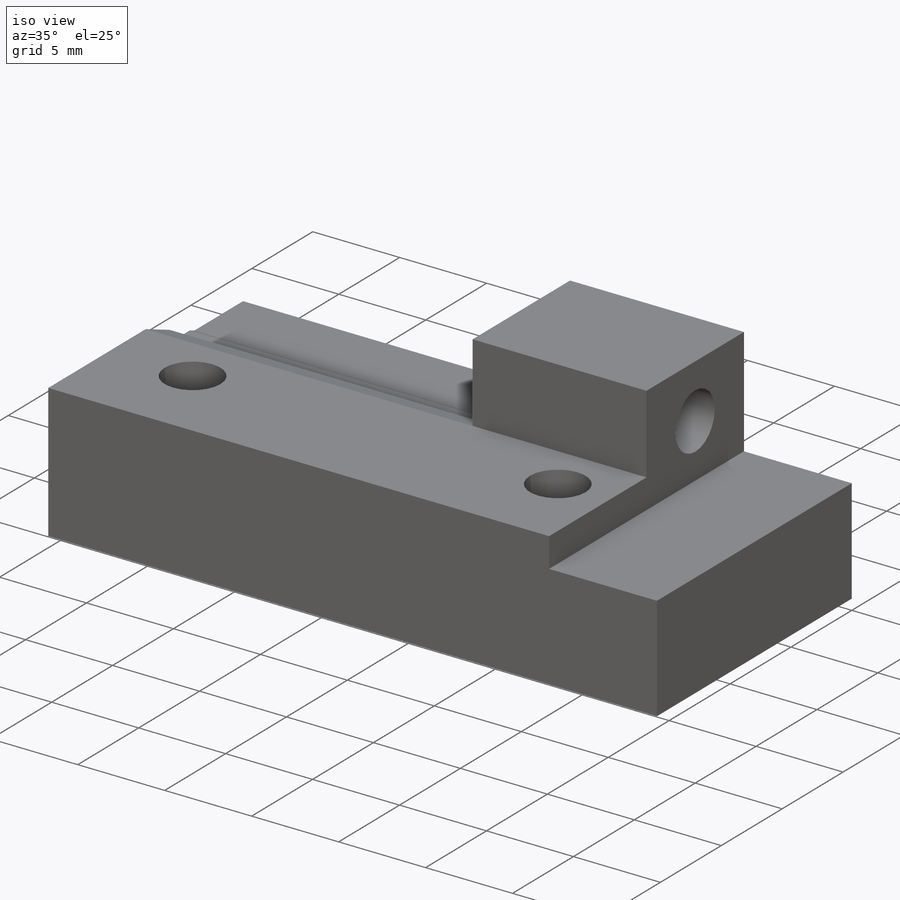
[diagram: iso view]
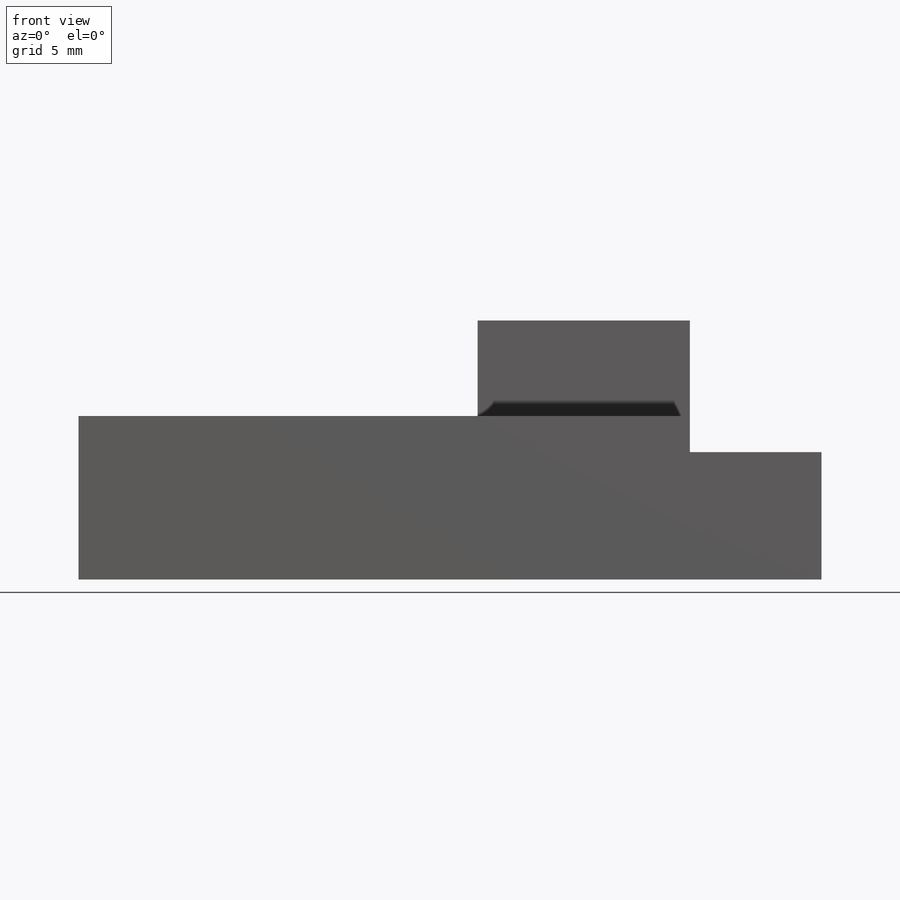
[diagram: front view]
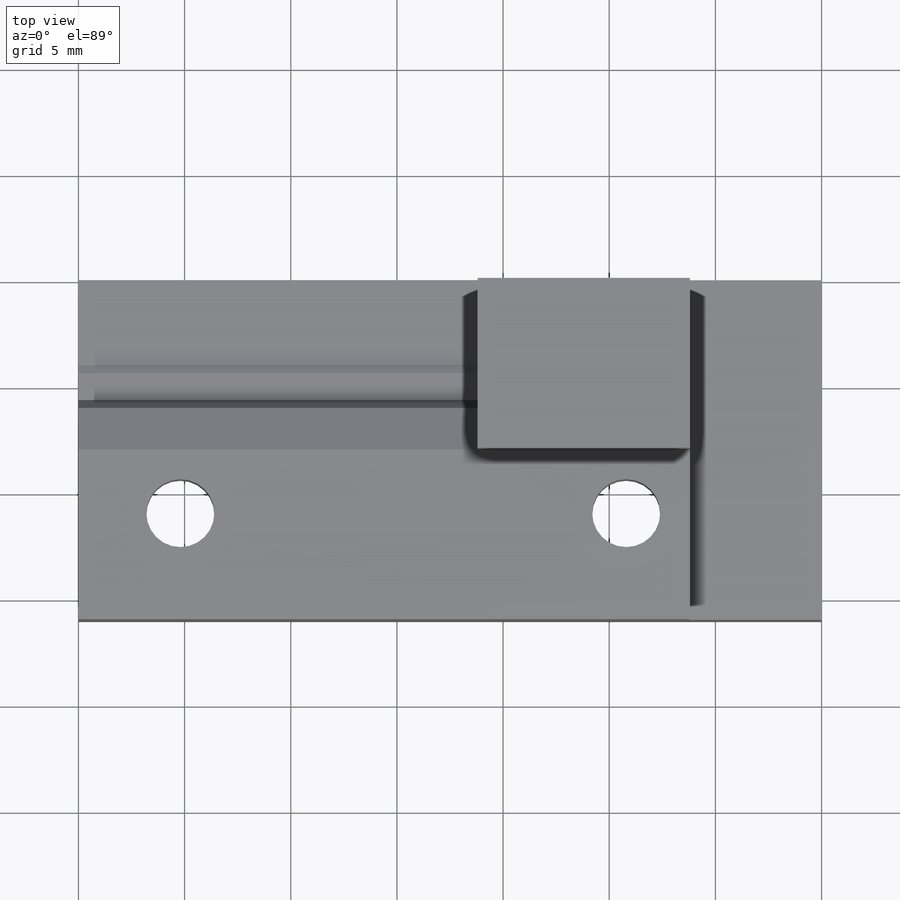
[diagram: top view]
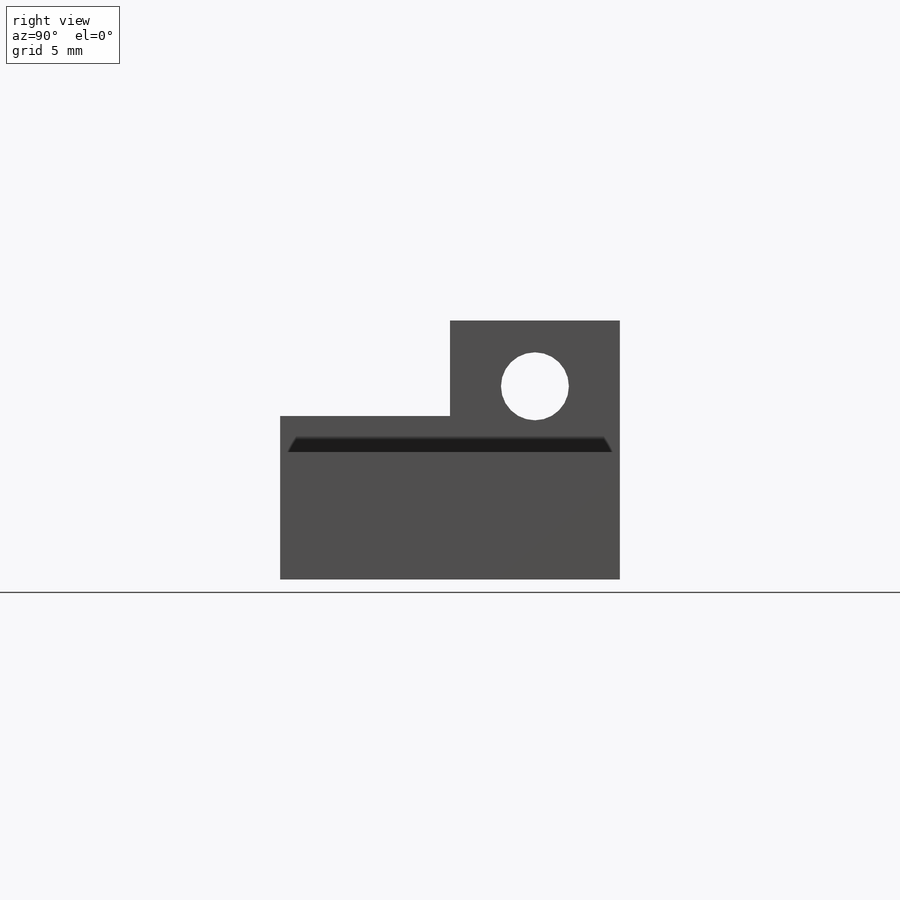
[diagram: right view]
SOLIDWORKS PART (.sldprt)
format: sldprt  version: not decoded by parser v0  size: 244,224 bytes
history: native  units: mm
features: sketch x7, cut_extrude x5, plane x3, extrude x2, material x1 (+13 scaffold rows collapsed)
feature tree (31):
  scaffold x13  (default folders/planes/origin — collapsed)
  material  "Material <sin especificar>"
  plane  "Alzado"
  plane  "Planta"
  plane  "Vista lateral"
  sketch  "Croquis1"  dims[D1=6.0mm D2=6.2mm D3=6.2mm D4=35.0mm]
  extrude  "Saliente-Extruir1"  Depth=8mm
  sketch  "Croquis2"  dims[c1.D2=4.5mm c1.D3=14.2mm c2.D3=90.0deg c3.D3=9.7mm c3.D1=0.0mm]
  extrude  "Saliente-Extruir2"  Depth=8mm
  sketch  "Croquis3"  dims[D3=3.2mm D1=3.1mm D2=4.0mm]
  cut_extrude  "Cortar-Extruir1"  [1 undecoded]
  sketch  "Croquis4"  dims[D4=3.2mm D1=21.0mm D2=3.0mm D3=3.0mm]
  cut_extrude  "Cortar-Extruir2"  [1 undecoded]
  sketch  "Croquis5"  dims[D1=5.7mm]
  cut_extrude  "Cortar-Extruir3"  Depth=3mm
  sketch  "Croquis6"  dims[D2=4.0mm D3=6.1mm D1=0.0mm]
  cut_extrude  "Cortar-Extruir4"  Depth=10mm
  sketch  "Croquis7"  dims[D1=5.7mm]
  cut_extrude  "Cortar-Extruir5"  Depth=3mm
decode coverage: 12 of 14 modeling features carry decoded parameters
note: 2 parameter values undecoded
note: suppression state not decoded; provenance and decode notes live in map.json
